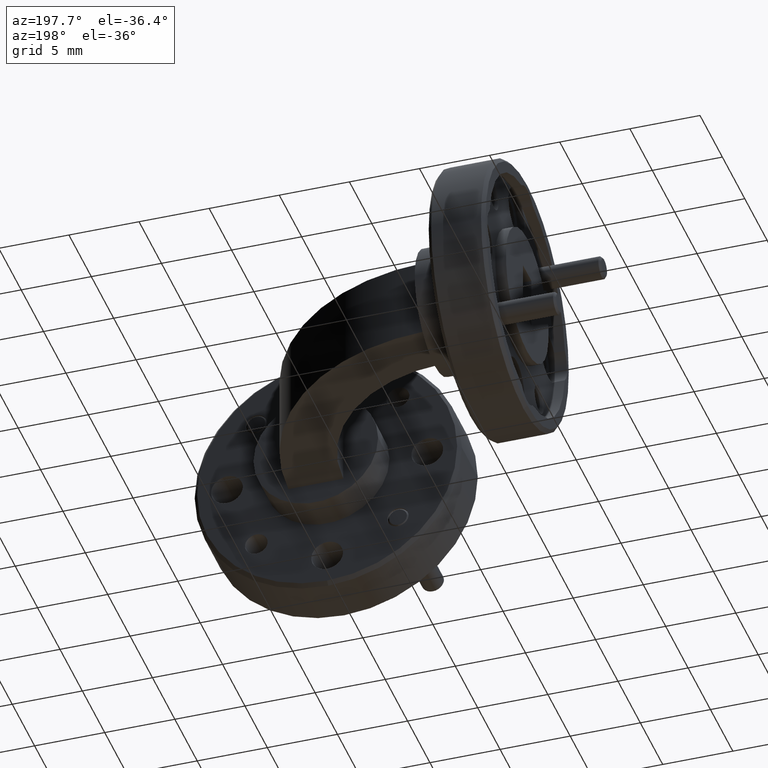
[diagram: clean part render]
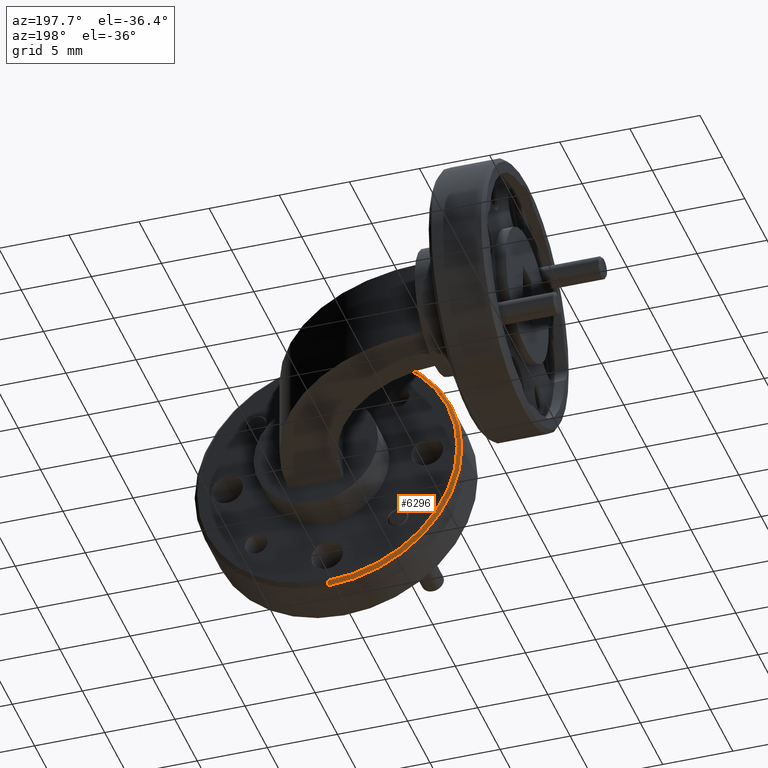
[diagram: same view with one face highlighted and labeled with its STEP entity id]
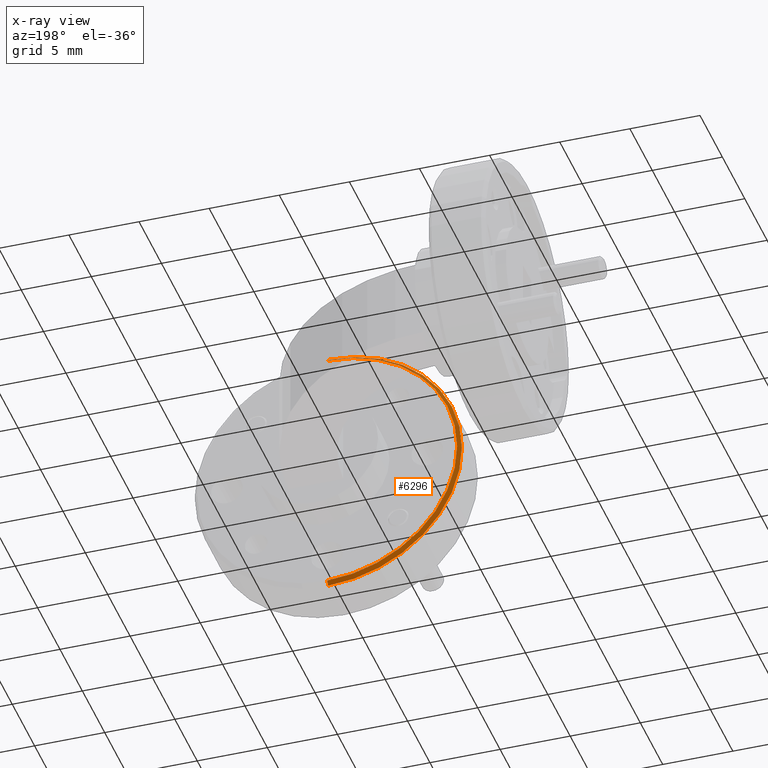
[diagram: x-ray of the same camera — body ghosted, the highlighted face saturated]
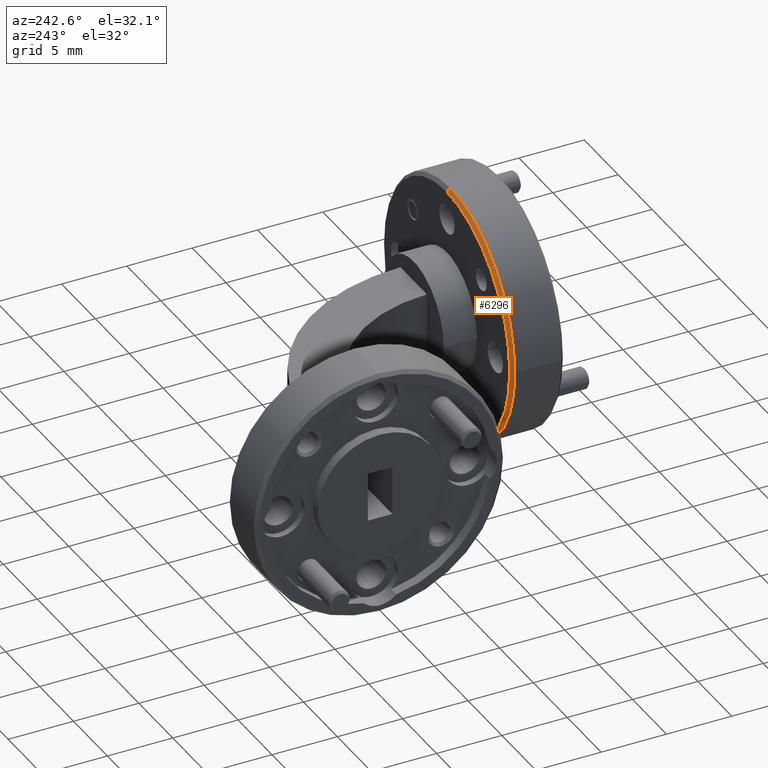
[diagram: same view with one face highlighted and labeled with its STEP entity id]
A machine part, auxiliary view. The second image highlights one B-rep face of the part: STEP entity #6296.
The next image is the same camera in x-ray: the body ghosted, the highlighted face saturated — about 8% of this face is hidden behind the body in this view.
A second angle (auxiliary view) of the same face is appended — the face is thin or edge-on in the first view.
In plain terms, the highlighted conical surface has half-angle 45 deg.
Its self-contained STEP definition (entity closure, byte-faithful):
#67 = ORIENTED_EDGE ( 'NONE', *, *, #2195, .F. ) ;
#92 = VERTEX_POINT ( 'NONE', #446 ) ;
#182 = DIRECTION ( 'NONE',  ( 3.608224830031758756E-15, 1.000000000000000000, -0.000000000000000000 ) ) ;
#190 = CARTESIAN_POINT ( 'NONE',  ( -1.349202687138052470, 0.01705549535850547568, 0.1440634001413546861 ) ) ;
#371 = CARTESIAN_POINT ( 'NONE',  ( -1.349202687138052470, 0.01705549535850547568, 0.5190634001413547693 ) ) ;
#446 = CARTESIAN_POINT ( 'NONE',  ( -1.349202687138052470, 0.01705549535850554507, 0.8940634001413546583 ) ) ;
#502 = AXIS2_PLACEMENT_3D ( 'NONE', #7508, #2581, #7390 ) ;
#561 = VERTEX_POINT ( 'NONE', #5768 ) ;
#628 = CIRCLE ( 'NONE', #502, 0.3750000000000000555 ) ;
#766 = CARTESIAN_POINT ( 'NONE',  ( -1.349202687138052470, 0.02705549535850482190, 0.5190634001413547693 ) ) ;
#781 = EDGE_CURVE ( 'NONE', #7349, #2411, #628, .T. ) ;
#843 = CARTESIAN_POINT ( 'NONE',  ( -1.349202687138052470, 0.01705549535850547568, 0.8940634001413546583 ) ) ;
#1325 = LINE ( 'NONE', #843, #6035 ) ;
#1345 = ORIENTED_EDGE ( 'NONE', *, *, #781, .F. ) ;
#1652 = EDGE_CURVE ( 'NONE', #92, #7349, #1695, .T. ) ;
#1695 = CIRCLE ( 'NONE', #2739, 0.3750000000000000555 ) ;
#1773 = DIRECTION ( 'NONE',  ( 0.000000000000000000, 0.000000000000000000, -1.000000000000000000 ) ) ;
#2195 = EDGE_CURVE ( 'NONE', #561, #92, #1325, .T. ) ;
#2411 = VERTEX_POINT ( 'NONE', #5356 ) ;
#2581 = DIRECTION ( 'NONE',  ( -0.000000000000000000, -1.000000000000000000, -0.000000000000000000 ) ) ;
#2591 = DIRECTION ( 'NONE',  ( 1.000000000000000000, -3.613617423126084000E-15, 0.000000000000000000 ) ) ;
#2645 = CARTESIAN_POINT ( 'NONE',  ( -1.724202687138052470, 0.01705549535850554507, 0.5190634001413547693 ) ) ;
#2739 = AXIS2_PLACEMENT_3D ( 'NONE', #4822, #6445, #1773 ) ;
#2876 = CIRCLE ( 'NONE', #3880, 0.3650000000000018230 ) ;
#3283 = DIRECTION ( 'NONE',  ( 8.659560562354992023E-17, -0.7071067811865426878, 0.7071067811865523467 ) ) ;
#3397 = ORIENTED_EDGE ( 'NONE', *, *, #3859, .T. ) ;
#3518 = VERTEX_POINT ( 'NONE', #5094 ) ;
#3859 = EDGE_CURVE ( 'NONE', #3518, #2411, #5147, .T. ) ;
#3871 = DIRECTION ( 'NONE',  ( 0.000000000000000000, -0.7071067811865426878, -0.7071067811865523467 ) ) ;
#3880 = AXIS2_PLACEMENT_3D ( 'NONE', #766, #182, #2591 ) ;
#4022 = DIRECTION ( 'NONE',  ( 0.000000000000000000, 0.000000000000000000, -1.000000000000000000 ) ) ;
#4154 = EDGE_CURVE ( 'NONE', #3518, #561, #2876, .T. ) ;
#4220 = EDGE_LOOP ( 'NONE', ( #67, #6991, #3397, #1345, #6512 ) ) ;
#4822 = CARTESIAN_POINT ( 'NONE',  ( -1.349202687138052470, 0.01705549535850554507, 0.5190634001413547693 ) ) ;
#5094 = CARTESIAN_POINT ( 'NONE',  ( -1.349202687138052470, 0.02705549535850482190, 0.1540634001413528908 ) ) ;
#5147 = LINE ( 'NONE', #190, #7254 ) ;
#5356 = CARTESIAN_POINT ( 'NONE',  ( -1.349202687138052470, 0.01705549535850554507, 0.1440634001413547693 ) ) ;
#5757 = AXIS2_PLACEMENT_3D ( 'NONE', #371, #7561, #4022 ) ;
#5768 = CARTESIAN_POINT ( 'NONE',  ( -1.349202687138052470, 0.02705549535850482190, 0.8840634001413565368 ) ) ;
#5801 = FACE_OUTER_BOUND ( 'NONE', #4220, .T. ) ;
#5886 = CONICAL_SURFACE ( 'NONE', #5757, 0.3750000000000000555, 0.7853981633974551624 ) ;
#6035 = VECTOR ( 'NONE', #3283, 39.37007874015748143 ) ;
#6296 = ADVANCED_FACE ( 'NONE', ( #5801 ), #5886, .T. ) ;
#6445 = DIRECTION ( 'NONE',  ( -0.000000000000000000, -1.000000000000000000, -0.000000000000000000 ) ) ;
#6512 = ORIENTED_EDGE ( 'NONE', *, *, #1652, .F. ) ;
#6991 = ORIENTED_EDGE ( 'NONE', *, *, #4154, .F. ) ;
#7254 = VECTOR ( 'NONE', #3871, 39.37007874015748143 ) ;
#7349 = VERTEX_POINT ( 'NONE', #2645 ) ;
#7390 = DIRECTION ( 'NONE',  ( 0.000000000000000000, 0.000000000000000000, -1.000000000000000000 ) ) ;
#7508 = CARTESIAN_POINT ( 'NONE',  ( -1.349202687138052470, 0.01705549535850554507, 0.5190634001413547693 ) ) ;
#7561 = DIRECTION ( 'NONE',  ( -0.000000000000000000, -1.000000000000000000, -0.000000000000000000 ) ) ;